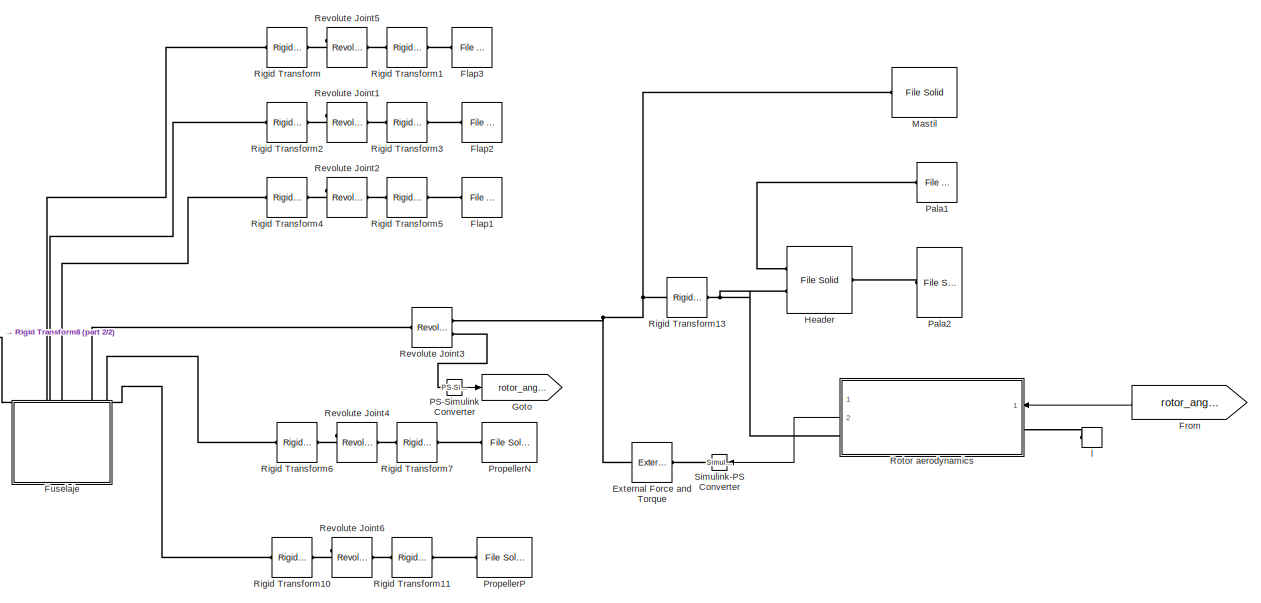
[diagram: root canvas - part 1/2, most of the canvas]
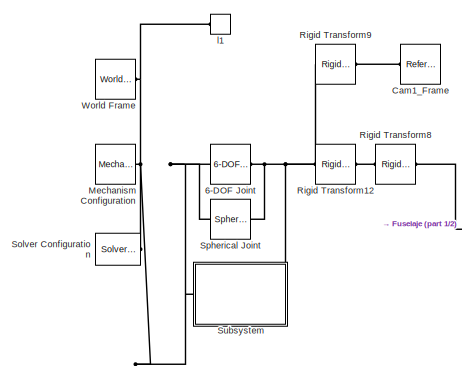
[diagram: root canvas - part 2/2, middle left region]
MODEL slx_e6487f48ca37
KIND model
CONFIG AbsTol = auto
CONFIG EnableMultiTasking = off
CONFIG FixedStep = 0.001
CONFIG MaxStep = auto
CONFIG MinStep = auto
CONFIG RelTol = 1e-3
CONFIG SampleTimeConstraint = Unconstrained
CONFIG SolverName = ode3
CONFIG StartTime = 0.0
CONFIG StopTime = 200
WORKSPACE source: mxarray member
WORKSPACE Area = 0.502654824574
WORKSPACE blade_radius = 0.4
WORKSPACE par_coefficient = [0 1 2 3 4 5 6 7 8 9 10 11 ... (42 elements, 21x2)]
WORKSPACE rho = 1.2
BLOCK [Reference] 6-DOF Joint  REF=sm_lib/Joints/6-DOF Joint
  Commented = on
  Ports = [0, 0, 0, 0, 0, 1, 1]
  SourceBlock = sm_lib/Joints/6-DOF Joint
  SourceProductBaseCode = MS
  SourceType = 6-DOF Joint
BLOCK [Reference] Cam1_Frame  REF=sm_lib/Frames and
Transforms/Reference
Frame
  NameLocation = top
  Ports = [0, 0, 0, 0, 0, 0, 1]
  SourceBlock = sm_lib/Frames and\nTransforms/Reference\nFrame
  SourceProductBaseCode = MS
  SourceType = Reference\nFrame
BLOCK [Reference] External Force and Torque  REF=sm_lib/Forces and
Torques/External Force
and Torque
  NameLocation = top
  Ports = [0, 0, 0, 0, 0, 1, 1]
  SourceBlock = sm_lib/Forces and\nTorques/External Force\nand Torque
  SourceProductBaseCode = MS
  SourceType = External Force\nand Torque
BLOCK [Reference] Flap1  REF=sm_lib/Body Elements/File Solid
  Ports = [0, 0, 0, 0, 0, 1]
  SourceBlock = sm_lib/Body Elements/File Solid
  SourceProductBaseCode = MS
  SourceType = File Solid
BLOCK [Reference] Flap2  REF=sm_lib/Body Elements/File Solid
  Ports = [0, 0, 0, 0, 0, 1]
  SourceBlock = sm_lib/Body Elements/File Solid
  SourceProductBaseCode = MS
  SourceType = File Solid
BLOCK [Reference] Flap3  REF=sm_lib/Body Elements/File Solid
  Ports = [0, 0, 0, 0, 0, 1]
  SourceBlock = sm_lib/Body Elements/File Solid
  SourceProductBaseCode = MS
  SourceType = File Solid
BLOCK [From] From
  GotoTag = rotor_ang_vel
  NameLocation = top
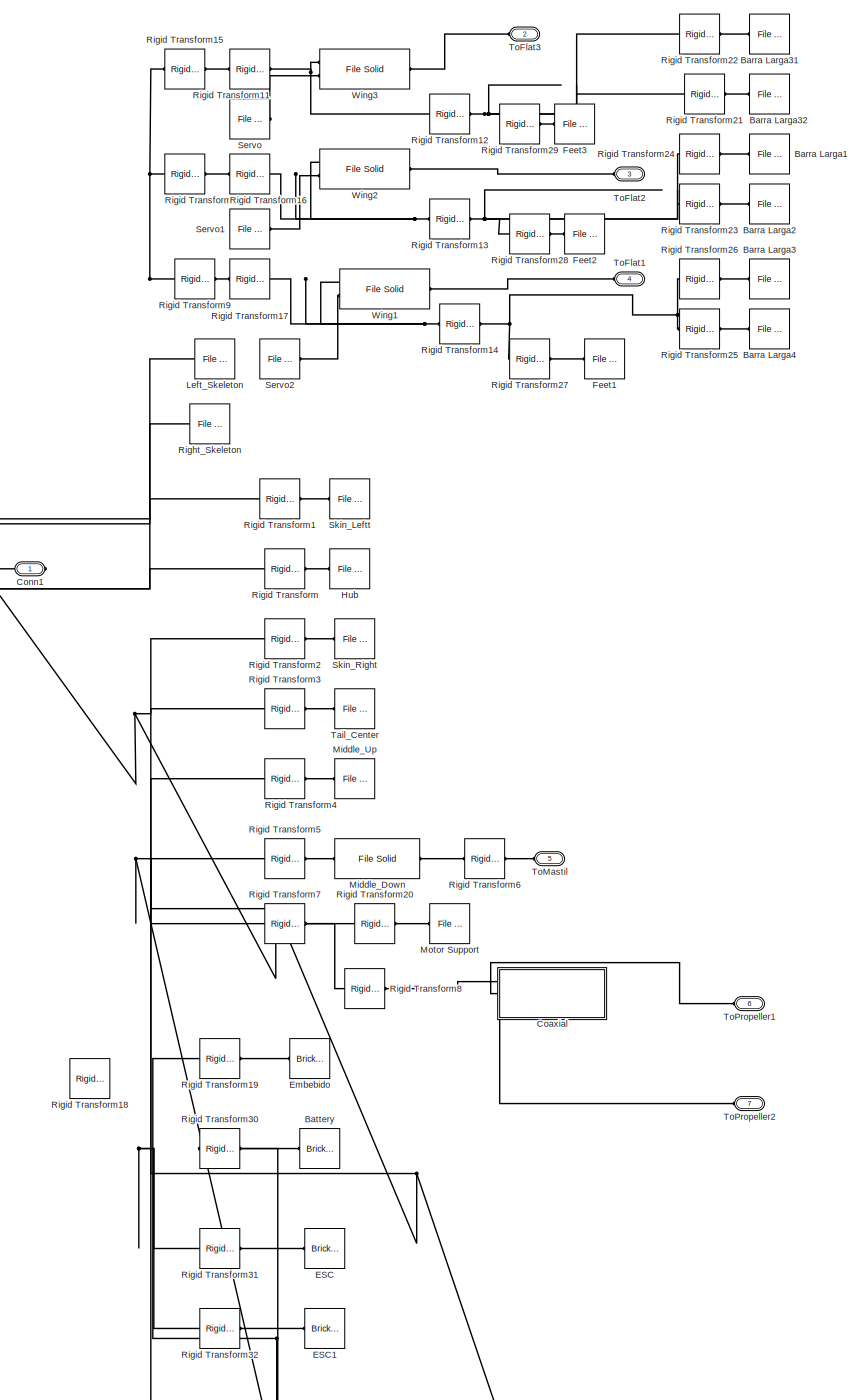
[diagram: Fuselaje - part 1/1, most of the canvas]
BLOCK [SubSystem] Fuselaje
  NameLocation = left
  Ports = [0, 0, 0, 0, 0, 7]
  RequestExecContextInheritance = off
BLOCK [Reference] Fuselaje/Barra Larga1  REF=sm_lib/Body Elements/File Solid
  Ports = [0, 0, 0, 0, 0, 1]
  SourceBlock = sm_lib/Body Elements/File Solid
  SourceProductBaseCode = MS
  SourceType = File Solid
BLOCK [Reference] Fuselaje/Barra Larga2  REF=sm_lib/Body Elements/File Solid
  Ports = [0, 0, 0, 0, 0, 1]
  SourceBlock = sm_lib/Body Elements/File Solid
  SourceProductBaseCode = MS
  SourceType = File Solid
BLOCK [Reference] Fuselaje/Barra Larga3  REF=sm_lib/Body Elements/File Solid
  Ports = [0, 0, 0, 0, 0, 1]
  SourceBlock = sm_lib/Body Elements/File Solid
  SourceProductBaseCode = MS
  SourceType = File Solid
BLOCK [Reference] Fuselaje/Barra Larga31  REF=sm_lib/Body Elements/File Solid
  Ports = [0, 0, 0, 0, 0, 1]
  SourceBlock = sm_lib/Body Elements/File Solid
  SourceProductBaseCode = MS
  SourceType = File Solid
BLOCK [Reference] Fuselaje/Barra Larga32  REF=sm_lib/Body Elements/File Solid
  Ports = [0, 0, 0, 0, 0, 1]
  SourceBlock = sm_lib/Body Elements/File Solid
  SourceProductBaseCode = MS
  SourceType = File Solid
BLOCK [Reference] Fuselaje/Barra Larga4  REF=sm_lib/Body Elements/File Solid
  Ports = [0, 0, 0, 0, 0, 1]
  SourceBlock = sm_lib/Body Elements/File Solid
  SourceProductBaseCode = MS
  SourceType = File Solid
BLOCK [Reference] Fuselaje/Battery  REF=sm_lib/Body Elements/Brick Solid
  NameLocation = top
  Ports = [0, 0, 0, 0, 0, 0, 1]
  SourceBlock = sm_lib/Body Elements/Brick Solid
  SourceProductBaseCode = MS
  SourceType = Brick Solid
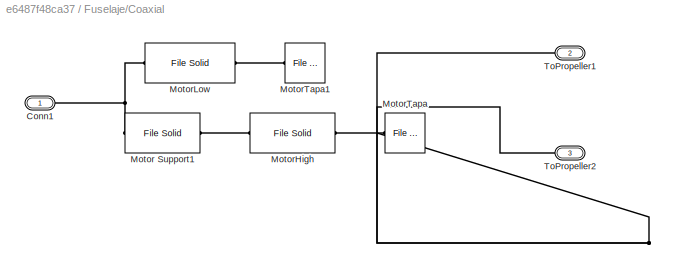
BLOCK [SubSystem] Fuselaje/Coaxial
  Ports = [0, 0, 0, 0, 0, 3]
  RequestExecContextInheritance = off
BLOCK [PMIOPort] Fuselaje/Coaxial/Conn1
  Side = Left
BLOCK [Reference] Fuselaje/Coaxial/Motor Support1  REF=sm_lib/Body Elements/File Solid
  Ports = [0, 0, 0, 0, 0, 1, 1]
  SourceBlock = sm_lib/Body Elements/File Solid
  SourceProductBaseCode = MS
  SourceType = File Solid
BLOCK [Reference] Fuselaje/Coaxial/MotorHigh  REF=sm_lib/Body Elements/File Solid
  Ports = [0, 0, 0, 0, 0, 1, 1]
  SourceBlock = sm_lib/Body Elements/File Solid
  SourceProductBaseCode = MS
  SourceType = File Solid
BLOCK [Reference] Fuselaje/Coaxial/MotorLow  REF=sm_lib/Body Elements/File Solid
  Ports = [0, 0, 0, 0, 0, 1, 1]
  SourceBlock = sm_lib/Body Elements/File Solid
  SourceProductBaseCode = MS
  SourceType = File Solid
BLOCK [Reference] Fuselaje/Coaxial/MotorTapa  REF=sm_lib/Body Elements/File Solid
  Ports = [0, 0, 0, 0, 0, 1]
  SourceBlock = sm_lib/Body Elements/File Solid
  SourceProductBaseCode = MS
  SourceType = File Solid
BLOCK [Reference] Fuselaje/Coaxial/MotorTapa1  REF=sm_lib/Body Elements/File Solid
  Ports = [0, 0, 0, 0, 0, 1]
  SourceBlock = sm_lib/Body Elements/File Solid
  SourceProductBaseCode = MS
  SourceType = File Solid
BLOCK [PMIOPort] Fuselaje/Coaxial/ToPropeller1
  NameLocation = top
  Port = 2
  Side = Left
BLOCK [PMIOPort] Fuselaje/Coaxial/ToPropeller2
  NameLocation = top
  Port = 3
  Side = Left
BLOCK [PMIOPort] Fuselaje/Conn1
  Side = Left
BLOCK [Reference] Fuselaje/ESC  REF=sm_lib/Body Elements/Brick Solid
  NameLocation = top
  Ports = [0, 0, 0, 0, 0, 0, 1]
  SourceBlock = sm_lib/Body Elements/Brick Solid
  SourceProductBaseCode = MS
  SourceType = Brick Solid
BLOCK [Reference] Fuselaje/ESC1  REF=sm_lib/Body Elements/Brick Solid
  NameLocation = top
  Ports = [0, 0, 0, 0, 0, 0, 1]
  SourceBlock = sm_lib/Body Elements/Brick Solid
  SourceProductBaseCode = MS
  SourceType = Brick Solid
BLOCK [Reference] Fuselaje/Embebido  REF=sm_lib/Body Elements/Brick Solid
  NameLocation = top
  Ports = [0, 0, 0, 0, 0, 0, 1]
  SourceBlock = sm_lib/Body Elements/Brick Solid
  SourceProductBaseCode = MS
  SourceType = Brick Solid
BLOCK [Reference] Fuselaje/Feet1  REF=sm_lib/Body Elements/File Solid
  Ports = [0, 0, 0, 0, 0, 1]
  SourceBlock = sm_lib/Body Elements/File Solid
  SourceProductBaseCode = MS
  SourceType = File Solid
BLOCK [Reference] Fuselaje/Feet2  REF=sm_lib/Body Elements/File Solid
  Ports = [0, 0, 0, 0, 0, 1]
  SourceBlock = sm_lib/Body Elements/File Solid
  SourceProductBaseCode = MS
  SourceType = File Solid
BLOCK [Reference] Fuselaje/Feet3  REF=sm_lib/Body Elements/File Solid
  Ports = [0, 0, 0, 0, 0, 1]
  SourceBlock = sm_lib/Body Elements/File Solid
  SourceProductBaseCode = MS
  SourceType = File Solid
BLOCK [Reference] Fuselaje/Hub  REF=sm_lib/Body Elements/File Solid
  Ports = [0, 0, 0, 0, 0, 1]
  SourceBlock = sm_lib/Body Elements/File Solid
  SourceProductBaseCode = MS
  SourceType = File Solid
BLOCK [Reference] Fuselaje/Left_Skeleton  REF=sm_lib/Body Elements/File Solid
  Ports = [0, 0, 0, 0, 0, 1]
  SourceBlock = sm_lib/Body Elements/File Solid
  SourceProductBaseCode = MS
  SourceType = File Solid
BLOCK [Reference] Fuselaje/Middle_Down  REF=sm_lib/Body Elements/File Solid
  Ports = [0, 0, 0, 0, 0, 1, 1]
  SourceBlock = sm_lib/Body Elements/File Solid
  SourceProductBaseCode = MS
  SourceType = File Solid
BLOCK [Reference] Fuselaje/Middle_Up  REF=sm_lib/Body Elements/File Solid
  Ports = [0, 0, 0, 0, 0, 1]
  SourceBlock = sm_lib/Body Elements/File Solid
  SourceProductBaseCode = MS
  SourceType = File Solid
BLOCK [Reference] Fuselaje/Motor Support  REF=sm_lib/Body Elements/File Solid
  Commented = on
  Ports = [0, 0, 0, 0, 0, 1]
  SourceBlock = sm_lib/Body Elements/File Solid
  SourceProductBaseCode = MS
  SourceType = File Solid
BLOCK [Reference] Fuselaje/Right_Skeleton  REF=sm_lib/Body Elements/File Solid
  Ports = [0, 0, 0, 0, 0, 1]
  SourceBlock = sm_lib/Body Elements/File Solid
  SourceProductBaseCode = MS
  SourceType = File Solid
BLOCK [Reference] Fuselaje/Rigid Transform  REF=sm_lib/Frames and
Transforms/Rigid
Transform
  Ports = [0, 0, 0, 0, 0, 1, 1]
  SourceBlock = sm_lib/Frames and\nTransforms/Rigid\nTransform
  SourceProductBaseCode = MS
  SourceType = Rigid\nTransform
BLOCK [Reference] Fuselaje/Rigid Transform1  REF=sm_lib/Frames and
Transforms/Rigid
Transform
  Ports = [0, 0, 0, 0, 0, 1, 1]
  SourceBlock = sm_lib/Frames and\nTransforms/Rigid\nTransform
  SourceProductBaseCode = MS
  SourceType = Rigid\nTransform
BLOCK [Reference] Fuselaje/Rigid Transform10  REF=sm_lib/Frames and
Transforms/Rigid
Transform
  Ports = [0, 0, 0, 0, 0, 1, 1]
  SourceBlock = sm_lib/Frames and\nTransforms/Rigid\nTransform
  SourceProductBaseCode = MS
  SourceType = Rigid\nTransform
BLOCK [Reference] Fuselaje/Rigid Transform11  REF=sm_lib/Frames and
Transforms/Rigid
Transform
  Ports = [0, 0, 0, 0, 0, 1, 1]
  SourceBlock = sm_lib/Frames and\nTransforms/Rigid\nTransform
  SourceProductBaseCode = MS
  SourceType = Rigid\nTransform
BLOCK [Reference] Fuselaje/Rigid Transform12  REF=sm_lib/Frames and
Transforms/Rigid
Transform
  Ports = [0, 0, 0, 0, 0, 1, 1]
  SourceBlock = sm_lib/Frames and\nTransforms/Rigid\nTransform
  SourceProductBaseCode = MS
  SourceType = Rigid\nTransform
BLOCK [Reference] Fuselaje/Rigid Transform13  REF=sm_lib/Frames and
Transforms/Rigid
Transform
  Ports = [0, 0, 0, 0, 0, 1, 1]
  SourceBlock = sm_lib/Frames and\nTransforms/Rigid\nTransform
  SourceProductBaseCode = MS
  SourceType = Rigid\nTransform
BLOCK [Reference] Fuselaje/Rigid Transform14  REF=sm_lib/Frames and
Transforms/Rigid
Transform
  Ports = [0, 0, 0, 0, 0, 1, 1]
  SourceBlock = sm_lib/Frames and\nTransforms/Rigid\nTransform
  SourceProductBaseCode = MS
  SourceType = Rigid\nTransform
BLOCK [Reference] Fuselaje/Rigid Transform15  REF=sm_lib/Frames and
Transforms/Rigid
Transform
  Ports = [0, 0, 0, 0, 0, 1, 1]
  SourceBlock = sm_lib/Frames and\nTransforms/Rigid\nTransform
  SourceProductBaseCode = MS
  SourceType = Rigid\nTransform
BLOCK [Reference] Fuselaje/Rigid Transform16  REF=sm_lib/Frames and
Transforms/Rigid
Transform
  Ports = [0, 0, 0, 0, 0, 1, 1]
  SourceBlock = sm_lib/Frames and\nTransforms/Rigid\nTransform
  SourceProductBaseCode = MS
  SourceType = Rigid\nTransform
BLOCK [Reference] Fuselaje/Rigid Transform17  REF=sm_lib/Frames and
Transforms/Rigid
Transform
  Ports = [0, 0, 0, 0, 0, 1, 1]
  SourceBlock = sm_lib/Frames and\nTransforms/Rigid\nTransform
  SourceProductBaseCode = MS
  SourceType = Rigid\nTransform
BLOCK [Reference] Fuselaje/Rigid Transform18  REF=sm_lib/Frames and
Transforms/Rigid
Transform
  Commented = on
  Ports = [0, 0, 0, 0, 0, 1, 1]
  SourceBlock = sm_lib/Frames and\nTransforms/Rigid\nTransform
  SourceProductBaseCode = MS
  SourceType = Rigid\nTransform
BLOCK [Reference] Fuselaje/Rigid Transform19  REF=sm_lib/Frames and
Transforms/Rigid
Transform
  Ports = [0, 0, 0, 0, 0, 1, 1]
  SourceBlock = sm_lib/Frames and\nTransforms/Rigid\nTransform
  SourceProductBaseCode = MS
  SourceType = Rigid\nTransform
BLOCK [Reference] Fuselaje/Rigid Transform2  REF=sm_lib/Frames and
Transforms/Rigid
Transform
  Ports = [0, 0, 0, 0, 0, 1, 1]
  SourceBlock = sm_lib/Frames and\nTransforms/Rigid\nTransform
  SourceProductBaseCode = MS
  SourceType = Rigid\nTransform
BLOCK [Reference] Fuselaje/Rigid Transform20  REF=sm_lib/Frames and
Transforms/Rigid
Transform
  Commented = on
  Ports = [0, 0, 0, 0, 0, 1, 1]
  SourceBlock = sm_lib/Frames and\nTransforms/Rigid\nTransform
  SourceProductBaseCode = MS
  SourceType = Rigid\nTransform
BLOCK [Reference] Fuselaje/Rigid Transform21  REF=sm_lib/Frames and
Transforms/Rigid
Transform
  Ports = [0, 0, 0, 0, 0, 1, 1]
  SourceBlock = sm_lib/Frames and\nTransforms/Rigid\nTransform
  SourceProductBaseCode = MS
  SourceType = Rigid\nTransform
BLOCK [Reference] Fuselaje/Rigid Transform22  REF=sm_lib/Frames and
Transforms/Rigid
Transform
  Ports = [0, 0, 0, 0, 0, 1, 1]
  SourceBlock = sm_lib/Frames and\nTransforms/Rigid\nTransform
  SourceProductBaseCode = MS
  SourceType = Rigid\nTransform
BLOCK [Reference] Fuselaje/Rigid Transform23  REF=sm_lib/Frames and
Transforms/Rigid
Transform
  Ports = [0, 0, 0, 0, 0, 1, 1]
  SourceBlock = sm_lib/Frames and\nTransforms/Rigid\nTransform
  SourceProductBaseCode = MS
  SourceType = Rigid\nTransform
BLOCK [Reference] Fuselaje/Rigid Transform24  REF=sm_lib/Frames and
Transforms/Rigid
Transform
  Ports = [0, 0, 0, 0, 0, 1, 1]
  SourceBlock = sm_lib/Frames and\nTransforms/Rigid\nTransform
  SourceProductBaseCode = MS
  SourceType = Rigid\nTransform
BLOCK [Reference] Fuselaje/Rigid Transform25  REF=sm_lib/Frames and
Transforms/Rigid
Transform
  Ports = [0, 0, 0, 0, 0, 1, 1]
  SourceBlock = sm_lib/Frames and\nTransforms/Rigid\nTransform
  SourceProductBaseCode = MS
  SourceType = Rigid\nTransform
BLOCK [Reference] Fuselaje/Rigid Transform26  REF=sm_lib/Frames and
Transforms/Rigid
Transform
  Ports = [0, 0, 0, 0, 0, 1, 1]
  SourceBlock = sm_lib/Frames and\nTransforms/Rigid\nTransform
  SourceProductBaseCode = MS
  SourceType = Rigid\nTransform
BLOCK [Reference] Fuselaje/Rigid Transform27  REF=sm_lib/Frames and
Transforms/Rigid
Transform
  Ports = [0, 0, 0, 0, 0, 1, 1]
  SourceBlock = sm_lib/Frames and\nTransforms/Rigid\nTransform
  SourceProductBaseCode = MS
  SourceType = Rigid\nTransform
BLOCK [Reference] Fuselaje/Rigid Transform28  REF=sm_lib/Frames and
Transforms/Rigid
Transform
  Ports = [0, 0, 0, 0, 0, 1, 1]
  SourceBlock = sm_lib/Frames and\nTransforms/Rigid\nTransform
  SourceProductBaseCode = MS
  SourceType = Rigid\nTransform
BLOCK [Reference] Fuselaje/Rigid Transform29  REF=sm_lib/Frames and
Transforms/Rigid
Transform
  Ports = [0, 0, 0, 0, 0, 1, 1]
  SourceBlock = sm_lib/Frames and\nTransforms/Rigid\nTransform
  SourceProductBaseCode = MS
  SourceType = Rigid\nTransform
BLOCK [Reference] Fuselaje/Rigid Transform3  REF=sm_lib/Frames and
Transforms/Rigid
Transform
  Ports = [0, 0, 0, 0, 0, 1, 1]
  SourceBlock = sm_lib/Frames and\nTransforms/Rigid\nTransform
  SourceProductBaseCode = MS
  SourceType = Rigid\nTransform
BLOCK [Reference] Fuselaje/Rigid Transform30  REF=sm_lib/Frames and
Transforms/Rigid
Transform
  Ports = [0, 0, 0, 0, 0, 1, 1]
  SourceBlock = sm_lib/Frames and\nTransforms/Rigid\nTransform
  SourceProductBaseCode = MS
  SourceType = Rigid\nTransform
BLOCK [Reference] Fuselaje/Rigid Transform31  REF=sm_lib/Frames and
Transforms/Rigid
Transform
  Ports = [0, 0, 0, 0, 0, 1, 1]
  SourceBlock = sm_lib/Frames and\nTransforms/Rigid\nTransform
  SourceProductBaseCode = MS
  SourceType = Rigid\nTransform
BLOCK [Reference] Fuselaje/Rigid Transform32  REF=sm_lib/Frames and
Transforms/Rigid
Transform
  Ports = [0, 0, 0, 0, 0, 1, 1]
  SourceBlock = sm_lib/Frames and\nTransforms/Rigid\nTransform
  SourceProductBaseCode = MS
  SourceType = Rigid\nTransform
BLOCK [Reference] Fuselaje/Rigid Transform4  REF=sm_lib/Frames and
Transforms/Rigid
Transform
  Ports = [0, 0, 0, 0, 0, 1, 1]
  SourceBlock = sm_lib/Frames and\nTransforms/Rigid\nTransform
  SourceProductBaseCode = MS
  SourceType = Rigid\nTransform
BLOCK [Reference] Fuselaje/Rigid Transform5  REF=sm_lib/Frames and
Transforms/Rigid
Transform
  Ports = [0, 0, 0, 0, 0, 1, 1]
  SourceBlock = sm_lib/Frames and\nTransforms/Rigid\nTransform
  SourceProductBaseCode = MS
  SourceType = Rigid\nTransform
BLOCK [Reference] Fuselaje/Rigid Transform6  REF=sm_lib/Frames and
Transforms/Rigid
Transform
  Ports = [0, 0, 0, 0, 0, 1, 1]
  SourceBlock = sm_lib/Frames and\nTransforms/Rigid\nTransform
  SourceProductBaseCode = MS
  SourceType = Rigid\nTransform
BLOCK [Reference] Fuselaje/Rigid Transform7  REF=sm_lib/Frames and
Transforms/Rigid
Transform
  Ports = [0, 0, 0, 0, 0, 1, 1]
  SourceBlock = sm_lib/Frames and\nTransforms/Rigid\nTransform
  SourceProductBaseCode = MS
  SourceType = Rigid\nTransform
BLOCK [Reference] Fuselaje/Rigid Transform8  REF=sm_lib/Frames and
Transforms/Rigid
Transform
  Ports = [0, 0, 0, 0, 0, 1, 1]
  SourceBlock = sm_lib/Frames and\nTransforms/Rigid\nTransform
  SourceProductBaseCode = MS
  SourceType = Rigid\nTransform
BLOCK [Reference] Fuselaje/Rigid Transform9  REF=sm_lib/Frames and
Transforms/Rigid
Transform
  Ports = [0, 0, 0, 0, 0, 1, 1]
  SourceBlock = sm_lib/Frames and\nTransforms/Rigid\nTransform
  SourceProductBaseCode = MS
  SourceType = Rigid\nTransform
BLOCK [Reference] Fuselaje/Servo  REF=sm_lib/Body Elements/File Solid
  NameLocation = top
  Ports = [0, 0, 0, 0, 0, 1]
  SourceBlock = sm_lib/Body Elements/File Solid
  SourceProductBaseCode = MS
  SourceType = File Solid
BLOCK [Reference] Fuselaje/Servo1  REF=sm_lib/Body Elements/File Solid
  NameLocation = top
  Ports = [0, 0, 0, 0, 0, 1]
  SourceBlock = sm_lib/Body Elements/File Solid
  SourceProductBaseCode = MS
  SourceType = File Solid
BLOCK [Reference] Fuselaje/Servo2  REF=sm_lib/Body Elements/File Solid
  NameLocation = top
  Ports = [0, 0, 0, 0, 0, 1]
  SourceBlock = sm_lib/Body Elements/File Solid
  SourceProductBaseCode = MS
  SourceType = File Solid
BLOCK [Reference] Fuselaje/Skin_Leftt  REF=sm_lib/Body Elements/File Solid
  Ports = [0, 0, 0, 0, 0, 1]
  SourceBlock = sm_lib/Body Elements/File Solid
  SourceProductBaseCode = MS
  SourceType = File Solid
BLOCK [Reference] Fuselaje/Skin_Right  REF=sm_lib/Body Elements/File Solid
  Ports = [0, 0, 0, 0, 0, 1]
  SourceBlock = sm_lib/Body Elements/File Solid
  SourceProductBaseCode = MS
  SourceType = File Solid
BLOCK [Reference] Fuselaje/Tail_Center  REF=sm_lib/Body Elements/File Solid
  Ports = [0, 0, 0, 0, 0, 1]
  SourceBlock = sm_lib/Body Elements/File Solid
  SourceProductBaseCode = MS
  SourceType = File Solid
BLOCK [PMIOPort] Fuselaje/ToFlat1
  NameLocation = top
  Port = 4
  Side = Left
BLOCK [PMIOPort] Fuselaje/ToFlat2
  NameLocation = top
  Port = 3
  Side = Left
BLOCK [PMIOPort] Fuselaje/ToFlat3
  NameLocation = top
  Port = 2
  Side = Left
BLOCK [PMIOPort] Fuselaje/ToMastil
  NameLocation = top
  Port = 5
  Side = Left
BLOCK [PMIOPort] Fuselaje/ToPropeller1
  NameLocation = top
  Port = 6
  Side = Left
BLOCK [PMIOPort] Fuselaje/ToPropeller2
  NameLocation = top
  Port = 7
  Side = Left
BLOCK [Reference] Fuselaje/Wing1  REF=sm_lib/Body Elements/File Solid
  Ports = [0, 0, 0, 0, 0, 2, 1]
  SourceBlock = sm_lib/Body Elements/File Solid
  SourceProductBaseCode = MS
  SourceType = File Solid
BLOCK [Reference] Fuselaje/Wing2  REF=sm_lib/Body Elements/File Solid
  Ports = [0, 0, 0, 0, 0, 2, 1]
  SourceBlock = sm_lib/Body Elements/File Solid
  SourceProductBaseCode = MS
  SourceType = File Solid
BLOCK [Reference] Fuselaje/Wing3  REF=sm_lib/Body Elements/File Solid
  Ports = [0, 0, 0, 0, 0, 2, 1]
  SourceBlock = sm_lib/Body Elements/File Solid
  SourceProductBaseCode = MS
  SourceType = File Solid
BLOCK [Goto] Goto
  GotoTag = rotor_ang_vel
BLOCK [Reference] Header  REF=sm_lib/Body Elements/File Solid
  Ports = [0, 0, 0, 0, 0, 2, 1]
  SourceBlock = sm_lib/Body Elements/File Solid
  SourceProductBaseCode = MS
  SourceType = File Solid
BLOCK [Reference] Mastil  REF=sm_lib/Body Elements/File Solid
  Ports = [0, 0, 0, 0, 0, 1, 1]
  SourceBlock = sm_lib/Body Elements/File Solid
  SourceProductBaseCode = MS
  SourceType = File Solid
BLOCK [Reference] Mechanism Configuration  REF=sm_lib/Utilities/Mechanism
Configuration
  Ports = [0, 0, 0, 0, 0, 0, 1]
  SourceBlock = sm_lib/Utilities/Mechanism\nConfiguration
  SourceProductBaseCode = MS
  SourceType = Mechanism\nConfiguration
BLOCK [Reference] PS-Simulink Converter  REF=nesl_utility/PS-Simulink
Converter
  Ports = [0, 1, 0, 0, 0, 1]
  SourceBlock = nesl_utility/PS-Simulink\nConverter
  SourceProductBaseCode = PW,SS
  SourceType = PS-Simulink\nConverter
BLOCK [Reference] Pala1  REF=sm_lib/Body Elements/File Solid
  Ports = [0, 0, 0, 0, 0, 1]
  SourceBlock = sm_lib/Body Elements/File Solid
  SourceProductBaseCode = MS
  SourceType = File Solid
BLOCK [Reference] Pala2  REF=sm_lib/Body Elements/File Solid
  Ports = [0, 0, 0, 0, 0, 1]
  SourceBlock = sm_lib/Body Elements/File Solid
  SourceProductBaseCode = MS
  SourceType = File Solid
BLOCK [Reference] PropellerN  REF=sm_lib/Body Elements/File Solid
  Ports = [0, 0, 0, 0, 0, 1, 1]
  SourceBlock = sm_lib/Body Elements/File Solid
  SourceProductBaseCode = MS
  SourceType = File Solid
BLOCK [Reference] PropellerP  REF=sm_lib/Body Elements/File Solid
  Ports = [0, 0, 0, 0, 0, 1, 1]
  SourceBlock = sm_lib/Body Elements/File Solid
  SourceProductBaseCode = MS
  SourceType = File Solid
BLOCK [Reference] Revolute Joint1  REF=sm_lib/Joints/Revolute Joint
  Ports = [0, 0, 0, 0, 0, 2, 1]
  SourceBlock = sm_lib/Joints/Revolute Joint
  SourceProductBaseCode = MS
  SourceType = Revolute Joint
BLOCK [Reference] Revolute Joint2  REF=sm_lib/Joints/Revolute Joint
  Ports = [0, 0, 0, 0, 0, 2, 1]
  SourceBlock = sm_lib/Joints/Revolute Joint
  SourceProductBaseCode = MS
  SourceType = Revolute Joint
BLOCK [Reference] Revolute Joint3  REF=sm_lib/Joints/Revolute Joint
  Ports = [0, 0, 0, 0, 0, 1, 2]
  SourceBlock = sm_lib/Joints/Revolute Joint
  SourceProductBaseCode = MS
  SourceType = Revolute Joint
BLOCK [Reference] Revolute Joint4  REF=sm_lib/Joints/Revolute Joint
  Ports = [0, 0, 0, 0, 0, 2, 1]
  SourceBlock = sm_lib/Joints/Revolute Joint
  SourceProductBaseCode = MS
  SourceType = Revolute Joint
BLOCK [Reference] Revolute Joint5  REF=sm_lib/Joints/Revolute Joint
  Ports = [0, 0, 0, 0, 0, 2, 1]
  SourceBlock = sm_lib/Joints/Revolute Joint
  SourceProductBaseCode = MS
  SourceType = Revolute Joint
BLOCK [Reference] Revolute Joint6  REF=sm_lib/Joints/Revolute Joint
  Ports = [0, 0, 0, 0, 0, 2, 1]
  SourceBlock = sm_lib/Joints/Revolute Joint
  SourceProductBaseCode = MS
  SourceType = Revolute Joint
BLOCK [Reference] Rigid Transform  REF=sm_lib/Frames and
Transforms/Rigid
Transform
  Ports = [0, 0, 0, 0, 0, 1, 1]
  SourceBlock = sm_lib/Frames and\nTransforms/Rigid\nTransform
  SourceProductBaseCode = MS
  SourceType = Rigid\nTransform
BLOCK [Reference] Rigid Transform1  REF=sm_lib/Frames and
Transforms/Rigid
Transform
  Ports = [0, 0, 0, 0, 0, 1, 1]
  SourceBlock = sm_lib/Frames and\nTransforms/Rigid\nTransform
  SourceProductBaseCode = MS
  SourceType = Rigid\nTransform
BLOCK [Reference] Rigid Transform10  REF=sm_lib/Frames and
Transforms/Rigid
Transform
  Ports = [0, 0, 0, 0, 0, 1, 1]
  SourceBlock = sm_lib/Frames and\nTransforms/Rigid\nTransform
  SourceProductBaseCode = MS
  SourceType = Rigid\nTransform
BLOCK [Reference] Rigid Transform11  REF=sm_lib/Frames and
Transforms/Rigid
Transform
  Ports = [0, 0, 0, 0, 0, 1, 1]
  SourceBlock = sm_lib/Frames and\nTransforms/Rigid\nTransform
  SourceProductBaseCode = MS
  SourceType = Rigid\nTransform
BLOCK [Reference] Rigid Transform12  REF=sm_lib/Frames and
Transforms/Rigid
Transform
  Ports = [0, 0, 0, 0, 0, 1, 1]
  SourceBlock = sm_lib/Frames and\nTransforms/Rigid\nTransform
  SourceProductBaseCode = MS
  SourceType = Rigid\nTransform
BLOCK [Reference] Rigid Transform13  REF=sm_lib/Frames and
Transforms/Rigid
Transform
  Ports = [0, 0, 0, 0, 0, 1, 1]
  SourceBlock = sm_lib/Frames and\nTransforms/Rigid\nTransform
  SourceProductBaseCode = MS
  SourceType = Rigid\nTransform
BLOCK [Reference] Rigid Transform2  REF=sm_lib/Frames and
Transforms/Rigid
Transform
  Ports = [0, 0, 0, 0, 0, 1, 1]
  SourceBlock = sm_lib/Frames and\nTransforms/Rigid\nTransform
  SourceProductBaseCode = MS
  SourceType = Rigid\nTransform
BLOCK [Reference] Rigid Transform3  REF=sm_lib/Frames and
Transforms/Rigid
Transform
  Ports = [0, 0, 0, 0, 0, 1, 1]
  SourceBlock = sm_lib/Frames and\nTransforms/Rigid\nTransform
  SourceProductBaseCode = MS
  SourceType = Rigid\nTransform
BLOCK [Reference] Rigid Transform4  REF=sm_lib/Frames and
Transforms/Rigid
Transform
  Ports = [0, 0, 0, 0, 0, 1, 1]
  SourceBlock = sm_lib/Frames and\nTransforms/Rigid\nTransform
  SourceProductBaseCode = MS
  SourceType = Rigid\nTransform
BLOCK [Reference] Rigid Transform5  REF=sm_lib/Frames and
Transforms/Rigid
Transform
  Ports = [0, 0, 0, 0, 0, 1, 1]
  SourceBlock = sm_lib/Frames and\nTransforms/Rigid\nTransform
  SourceProductBaseCode = MS
  SourceType = Rigid\nTransform
BLOCK [Reference] Rigid Transform6  REF=sm_lib/Frames and
Transforms/Rigid
Transform
  Ports = [0, 0, 0, 0, 0, 1, 1]
  SourceBlock = sm_lib/Frames and\nTransforms/Rigid\nTransform
  SourceProductBaseCode = MS
  SourceType = Rigid\nTransform
BLOCK [Reference] Rigid Transform7  REF=sm_lib/Frames and
Transforms/Rigid
Transform
  Ports = [0, 0, 0, 0, 0, 1, 1]
  SourceBlock = sm_lib/Frames and\nTransforms/Rigid\nTransform
  SourceProductBaseCode = MS
  SourceType = Rigid\nTransform
BLOCK [Reference] Rigid Transform8  REF=sm_lib/Frames and
Transforms/Rigid
Transform
  Ports = [0, 0, 0, 0, 0, 1, 1]
  SourceBlock = sm_lib/Frames and\nTransforms/Rigid\nTransform
  SourceProductBaseCode = MS
  SourceType = Rigid\nTransform
BLOCK [Reference] Rigid Transform9  REF=sm_lib/Frames and
Transforms/Rigid
Transform
  Ports = [0, 0, 0, 0, 0, 1, 1]
  SourceBlock = sm_lib/Frames and\nTransforms/Rigid\nTransform
  SourceProductBaseCode = MS
  SourceType = Rigid\nTransform
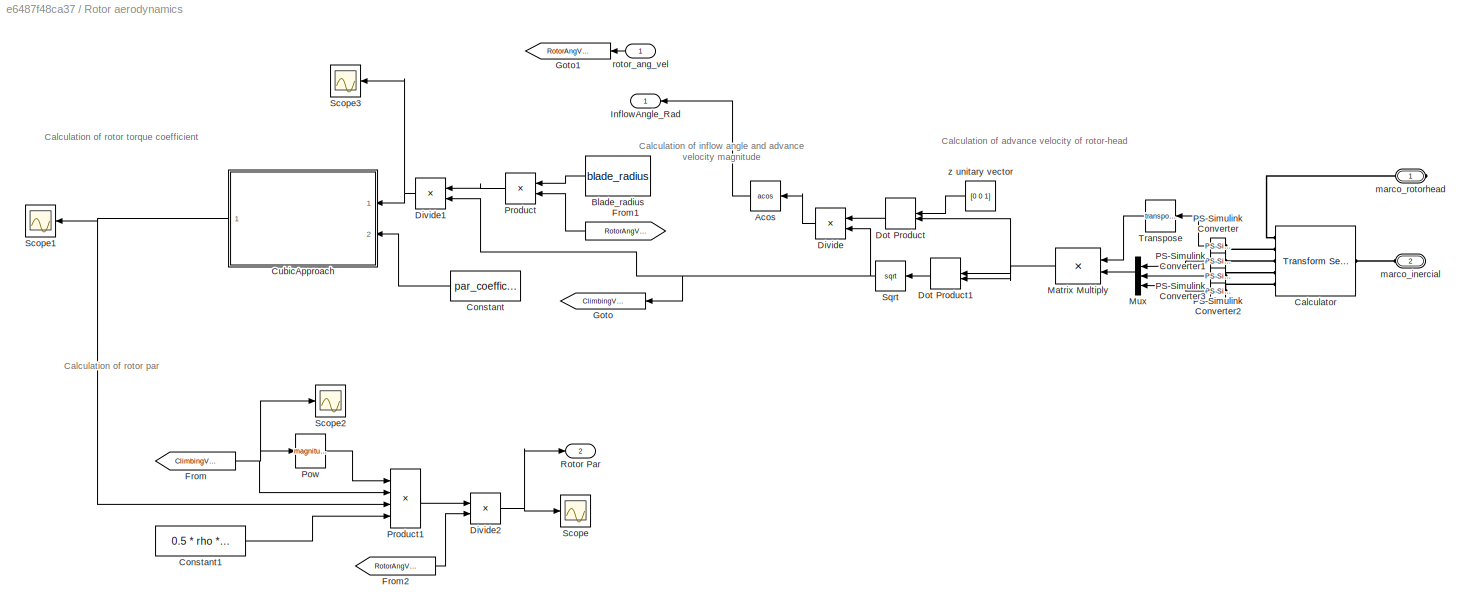
BLOCK [SubSystem] Rotor aerodynamics
  NameLocation = top
  Ports = [1, 2, 0, 0, 0, 1, 1]
  RequestExecContextInheritance = off
BLOCK [Trigonometry] Rotor aerodynamics/Acos
  NameLocation = top
  Operator = acos
  Ports = [1, 1]
BLOCK [Constant] Rotor aerodynamics/Blade_radius
  NameLocation = top
  Value = blade_radius
BLOCK [Reference] Rotor aerodynamics/Calculator  REF=sm_lib/Frames and
Transforms/Transform
Sensor
  NameLocation = top
  Ports = [0, 0, 0, 0, 0, 1, 5]
  SourceBlock = sm_lib/Frames and\nTransforms/Transform\nSensor
  SourceProductBaseCode = MS
  SourceType = Transform\nSensor
BLOCK [Constant] Rotor aerodynamics/Constant
  NameLocation = top
  Value = par_coefficient
  VectorParams1D = off
BLOCK [Constant] Rotor aerodynamics/Constant1
  Value = 0.5 * rho * Area
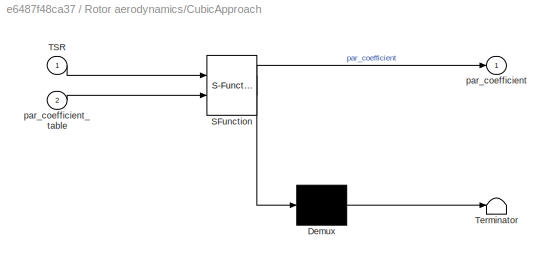
BLOCK [SubSystem] Rotor aerodynamics/CubicApproach
  ErrorFcn = Stateflow.Translate.translate
  NameLocation = top
  PermitHierarchicalResolution = ExplicitOnly
  Ports = [2, 1]
  RequestExecContextInheritance = off
  SFBlockType = MATLAB Function
  TreatAsAtomicUnit = on
BLOCK [Demux] Rotor aerodynamics/CubicApproach/ Demux 
  Outputs = 1
  Ports = [1, 1]
BLOCK [S-Function] Rotor aerodynamics/CubicApproach/ SFunction 
  EnableBusSupport = on
  FunctionName = sf_sfun
  PortCounts = [2 2]
  Ports = [2, 2]
  SFcnIsStateOwnerBlock = off
  SFunctionDeploymentMode = off
  Tag = Stateflow S-Function 2
BLOCK [Terminator] Rotor aerodynamics/CubicApproach/ Terminator 
BLOCK [Inport] Rotor aerodynamics/CubicApproach/TSR
BLOCK [Outport] Rotor aerodynamics/CubicApproach/par_coefficient
BLOCK [Inport] Rotor aerodynamics/CubicApproach/par_coefficient_table
  Port = 2
BLOCK [Product] Rotor aerodynamics/Divide
  Inputs = */
  NameLocation = top
  Ports = [2, 1]
BLOCK [Product] Rotor aerodynamics/Divide1
  Inputs = */
  NameLocation = top
  Ports = [2, 1]
BLOCK [Product] Rotor aerodynamics/Divide2
  Inputs = */
  Ports = [2, 1]
BLOCK [DotProduct] Rotor aerodynamics/Dot Product
  NameLocation = top
  OutDataTypeStr = Inherit: Inherit via internal rule
BLOCK [DotProduct] Rotor aerodynamics/Dot Product1
  NameLocation = top
  OutDataTypeStr = Inherit: Inherit via internal rule
BLOCK [From] Rotor aerodynamics/From
  GotoTag = ClimbingVel
BLOCK [From] Rotor aerodynamics/From1
  GotoTag = RotorAngVel
  NameLocation = top
BLOCK [From] Rotor aerodynamics/From2
  GotoTag = RotorAngVel
BLOCK [Goto] Rotor aerodynamics/Goto
  GotoTag = ClimbingVel
  NameLocation = top
BLOCK [Goto] Rotor aerodynamics/Goto1
  GotoTag = RotorAngVel
  NameLocation = top
BLOCK [Outport] Rotor aerodynamics/InflowAngle_Rad
  NameLocation = top
BLOCK [Product] Rotor aerodynamics/Matrix Multiply
  Multiplication = Matrix(*)
  NameLocation = top
  Ports = [2, 1]
BLOCK [Mux] Rotor aerodynamics/Mux
  DisplayOption = bar
  Inputs = 3
  NameLocation = top
  Ports = [3, 1]
BLOCK [Reference] Rotor aerodynamics/PS-Simulink Converter  REF=nesl_utility/PS-Simulink
Converter
  NameLocation = top
  Ports = [0, 1, 0, 0, 0, 1]
  SourceBlock = nesl_utility/PS-Simulink\nConverter
  SourceProductBaseCode = PW,SS
  SourceType = PS-Simulink\nConverter
BLOCK [Reference] Rotor aerodynamics/PS-Simulink Converter1  REF=nesl_utility/PS-Simulink
Converter
  NameLocation = top
  Ports = [0, 1, 0, 0, 0, 1]
  SourceBlock = nesl_utility/PS-Simulink\nConverter
  SourceProductBaseCode = PW,SS
  SourceType = PS-Simulink\nConverter
BLOCK [Reference] Rotor aerodynamics/PS-Simulink Converter2  REF=nesl_utility/PS-Simulink
Converter
  NameLocation = top
  Ports = [0, 1, 0, 0, 0, 1]
  SourceBlock = nesl_utility/PS-Simulink\nConverter
  SourceProductBaseCode = PW,SS
  SourceType = PS-Simulink\nConverter
BLOCK [Reference] Rotor aerodynamics/PS-Simulink Converter3  REF=nesl_utility/PS-Simulink
Converter
  NameLocation = top
  Ports = [0, 1, 0, 0, 0, 1]
  SourceBlock = nesl_utility/PS-Simulink\nConverter
  SourceProductBaseCode = PW,SS
  SourceType = PS-Simulink\nConverter
BLOCK [Math] Rotor aerodynamics/Pow
  Operator = magnitude^2
  Ports = [1, 1]
  RndMeth = Zero
  SignedPower = on
BLOCK [Product] Rotor aerodynamics/Product
  NameLocation = top
  Ports = [2, 1]
BLOCK [Product] Rotor aerodynamics/Product1
  Inputs = 4
  Ports = [4, 1]
BLOCK [Outport] Rotor aerodynamics/Rotor Par
  Port = 2
BLOCK [Scope] Rotor aerodynamics/Scope
  Floating = off
  NumInputPorts = 1
  Ports = [1]
  ScopeSpecificationString = Simulink.scopes.TimeScopeBlockCfg('CurrentConfiguration', extmgr.ConfigurationSet(extmgr.Configuration('Core','General UI',true),extmgr.Configuration('Core','Source UI',true),extmgr.Configuration('Sources','WiredSimulink',true),extmgr.Configuration('Visuals','Time Domain',true,'SerializedDisplays',{struct('MinYLimReal','-0.00401','MaxYLimReal','0.0358','YLabelReal','','MinYLimMag','0.00000','MaxYL...<+1377ch>
BLOCK [Scope] Rotor aerodynamics/Scope1
  Floating = off
  NameLocation = top
  NumInputPorts = 1
  Ports = [1]
  ScopeSpecificationString = Simulink.scopes.TimeScopeBlockCfg('CurrentConfiguration', extmgr.ConfigurationSet(extmgr.Configuration('Core','General UI',true),extmgr.Configuration('Core','Source UI',true),extmgr.Configuration('Sources','WiredSimulink',true,'DataLoggingVariableName','ScopeData1'),extmgr.Configuration('Visuals','Time Domain',true,'SerializedDisplays',{struct('MinYLimReal','-0.00771','MaxYLimReal','0.06846','YLab...<+1426ch>
BLOCK [Scope] Rotor aerodynamics/Scope2
  Floating = off
  NumInputPorts = 1
  Ports = [1]
  ScopeSpecificationString = Simulink.scopes.TimeScopeBlockCfg('CurrentConfiguration', extmgr.ConfigurationSet(extmgr.Configuration('Core','General UI',true),extmgr.Configuration('Core','Source UI',true),extmgr.Configuration('Sources','WiredSimulink',true,'DataLoggingVariableName','ScopeData2'),extmgr.Configuration('Visuals','Time Domain',true,'SerializedDisplays',{struct('MinYLimReal','4.99442','MaxYLimReal','5.00717','YLabe...<+1415ch>
BLOCK [Scope] Rotor aerodynamics/Scope3
  Floating = off
  NameLocation = top
  NumInputPorts = 1
  Ports = [1]
  ScopeSpecificationString = Simulink.scopes.TimeScopeBlockCfg('CurrentConfiguration', extmgr.ConfigurationSet(extmgr.Configuration('Core','General UI',true),extmgr.Configuration('Core','Source UI',true),extmgr.Configuration('Sources','WiredSimulink',true,'DataLoggingVariableName','ScopeData3'),extmgr.Configuration('Visuals','Time Domain',true,'SerializedDisplays',{struct('MinYLimReal','1.26396','MaxYLimReal','12.62434','YLab...<+1422ch>
BLOCK [Sqrt] Rotor aerodynamics/Sqrt
  NameLocation = top
BLOCK [Math] Rotor aerodynamics/Transpose
  NameLocation = top
  Operator = transpose
  Ports = [1, 1]
BLOCK [PMIOPort] Rotor aerodynamics/marco_inercial
  Port = 2
  Side = Left
BLOCK [PMIOPort] Rotor aerodynamics/marco_rotorhead
  Side = Right
BLOCK [Inport] Rotor aerodynamics/rotor_ang_vel
  NameLocation = top
BLOCK [Constant] Rotor aerodynamics/z unitary vector
  NameLocation = top
  Value = [0 0 1]
  VectorParams1D = off
BLOCK [Reference] Simulink-PS Converter  REF=nesl_utility/Simulink-PS
Converter
  NameLocation = top
  Ports = [1, 0, 0, 0, 0, 0, 1]
  SourceBlock = nesl_utility/Simulink-PS\nConverter
  SourceProductBaseCode = PW,SS
  SourceType = Simulink-PS\nConverter
BLOCK [Reference] Solver Configuration  REF=nesl_utility/Solver
Configuration
  Ports = [0, 0, 0, 0, 0, 0, 1]
  SourceBlock = nesl_utility/Solver\nConfiguration
  SourceProductBaseCode = PW,SS
  SourceType = Solver\nConfiguration
BLOCK [Reference] Spherical Joint  REF=sm_lib/Joints/Spherical
Joint
  Commented = on
  Ports = [0, 0, 0, 0, 0, 1, 1]
  SourceBlock = sm_lib/Joints/Spherical\nJoint
  SourceProductBaseCode = MS
  SourceType = Spherical\nJoint
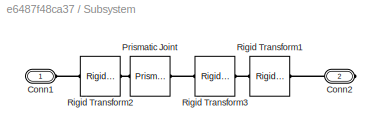
BLOCK [SubSystem] Subsystem
  Ports = [0, 0, 0, 0, 0, 1, 1]
  RequestExecContextInheritance = off
BLOCK [PMIOPort] Subsystem/Conn1
  Side = Left
BLOCK [PMIOPort] Subsystem/Conn2
  Port = 2
  Side = Right
BLOCK [Reference] Subsystem/Prismatic Joint  REF=sm_lib/Joints/Prismatic
Joint
  Ports = [0, 0, 0, 0, 0, 1, 1]
  SourceBlock = sm_lib/Joints/Prismatic\nJoint
  SourceProductBaseCode = MS
  SourceType = Prismatic\nJoint
BLOCK [Reference] Subsystem/Rigid Transform1  REF=sm_lib/Frames and
Transforms/Rigid
Transform
  Ports = [0, 0, 0, 0, 0, 1, 1]
  SourceBlock = sm_lib/Frames and\nTransforms/Rigid\nTransform
  SourceProductBaseCode = MS
  SourceType = Rigid\nTransform
BLOCK [Reference] Subsystem/Rigid Transform2  REF=sm_lib/Frames and
Transforms/Rigid
Transform
  Ports = [0, 0, 0, 0, 0, 1, 1]
  SourceBlock = sm_lib/Frames and\nTransforms/Rigid\nTransform
  SourceProductBaseCode = MS
  SourceType = Rigid\nTransform
BLOCK [Reference] Subsystem/Rigid Transform3  REF=sm_lib/Frames and
Transforms/Rigid
Transform
  Ports = [0, 0, 0, 0, 0, 1, 1]
  SourceBlock = sm_lib/Frames and\nTransforms/Rigid\nTransform
  SourceProductBaseCode = MS
  SourceType = Rigid\nTransform
BLOCK [Reference] World Frame  REF=sm_lib/Frames and
Transforms/World Frame
  Ports = [0, 0, 0, 0, 0, 0, 1]
  SourceBlock = sm_lib/Frames and\nTransforms/World Frame
  SourceProductBaseCode = MS
  SourceType = World Frame
BLOCK [ConnectionLabel] l
  Label = toHeader
  Ports = [0, 0, 0, 0, 0, 1]
BLOCK [ConnectionLabel] l1
  Label = toHeader
  Ports = [0, 0, 0, 0, 0, 1]
ANNOTATION Rotor aerodynamics: Calculation of advance velocity of rotor-head
ANNOTATION Rotor aerodynamics: Calculation of inflow angle and advance velocity magnitude
ANNOTATION Rotor aerodynamics: Calculation of rotor par
ANNOTATION Rotor aerodynamics: Calculation of rotor torque coefficient
LINE From:1 -> Rotor aerodynamics:1
LINE PS-Simulink Converter:1 -> Goto:1
LINE Rotor aerodynamics/Acos:1 -> Rotor aerodynamics/InflowAngle_Rad:1
LINE Rotor aerodynamics/Blade_radius:1 -> Rotor aerodynamics/Product:1
LINE Rotor aerodynamics/Constant1:1 -> Rotor aerodynamics/Product1:4
LINE Rotor aerodynamics/Constant:1 -> Rotor aerodynamics/CubicApproach:2
NET Rotor aerodynamics/CubicApproach:1 -> Rotor aerodynamics/Product1:3, Rotor aerodynamics/Scope1:1
NET Rotor aerodynamics/Divide1:1 -> Rotor aerodynamics/CubicApproach:1, Rotor aerodynamics/Scope3:1
NET Rotor aerodynamics/Divide2:1 -> Rotor aerodynamics/Rotor Par:1, Rotor aerodynamics/Scope:1
LINE Rotor aerodynamics/Divide:1 -> Rotor aerodynamics/Acos:1
LINE Rotor aerodynamics/Dot Product1:1 -> Rotor aerodynamics/Sqrt:1
LINE Rotor aerodynamics/Dot Product:1 -> Rotor aerodynamics/Divide:1
LINE Rotor aerodynamics/From1:1 -> Rotor aerodynamics/Product:2
LINE Rotor aerodynamics/From2:1 -> Rotor aerodynamics/Divide2:2
NET Rotor aerodynamics/From:1 -> Rotor aerodynamics/Pow:1, Rotor aerodynamics/Product1:2, Rotor aerodynamics/Scope2:1
NET Rotor aerodynamics/Matrix Multiply:1 -> Rotor aerodynamics/Dot Product1:1, Rotor aerodynamics/Dot Product1:2, Rotor aerodynamics/Dot Product:2
LINE Rotor aerodynamics/Mux:1 -> Rotor aerodynamics/Matrix Multiply:2
LINE Rotor aerodynamics/PS-Simulink Converter1:1 -> Rotor aerodynamics/Mux:1
LINE Rotor aerodynamics/PS-Simulink Converter2:1 -> Rotor aerodynamics/Mux:2
LINE Rotor aerodynamics/PS-Simulink Converter3:1 -> Rotor aerodynamics/Mux:3
LINE Rotor aerodynamics/PS-Simulink Converter:1 -> Rotor aerodynamics/Transpose:1
LINE Rotor aerodynamics/Pow:1 -> Rotor aerodynamics/Product1:1
LINE Rotor aerodynamics/Product1:1 -> Rotor aerodynamics/Divide2:1
LINE Rotor aerodynamics/Product:1 -> Rotor aerodynamics/Divide1:1
NET Rotor aerodynamics/Sqrt:1 -> Rotor aerodynamics/Divide1:2, Rotor aerodynamics/Divide:2, Rotor aerodynamics/Goto:1
LINE Rotor aerodynamics/Transpose:1 -> Rotor aerodynamics/Matrix Multiply:1
LINE Rotor aerodynamics/rotor_ang_vel:1 -> Rotor aerodynamics/Goto1:1
LINE Rotor aerodynamics/z unitary vector:1 -> Rotor aerodynamics/Dot Product:1
LINE Rotor aerodynamics:2 -> Simulink-PS Converter:1
PNET net1: 6-DOF Joint:LConn1 -- Mechanism Configuration:RConn1 -- Solver Configuration:RConn1 -- Spherical Joint:LConn1 -- Subsystem:LConn1 -- World Frame:RConn1 -- l1:LConn1
PNET net2: 6-DOF Joint:RConn1 -- Rigid Transform12:LConn1 -- Rigid Transform9:LConn1 -- Spherical Joint:RConn1 -- Subsystem:RConn1
PLINE Cam1_Frame:RConn1 -- Rigid Transform9:RConn1
PLINE External Force and Torque:LConn1 -- Simulink-PS Converter:RConn1
PNET net3: External Force and Torque:RConn1 -- Mastil:LConn1 -- Revolute Joint3:RConn1 -- Rigid Transform13:LConn1
PLINE Flap1:LConn1 -- Rigid Transform5:RConn1
PLINE Flap2:LConn1 -- Rigid Transform3:RConn1
PLINE Flap3:LConn1 -- Rigid Transform1:RConn1
PLINE Fuselaje/Barra Larga1:LConn1 -- Fuselaje/Rigid Transform24:RConn1
PLINE Fuselaje/Barra Larga2:LConn1 -- Fuselaje/Rigid Transform23:RConn1
PLINE Fuselaje/Barra Larga31:LConn1 -- Fuselaje/Rigid Transform22:RConn1
PLINE Fuselaje/Barra Larga32:LConn1 -- Fuselaje/Rigid Transform21:RConn1
PLINE Fuselaje/Barra Larga3:LConn1 -- Fuselaje/Rigid Transform26:RConn1
PLINE Fuselaje/Barra Larga4:LConn1 -- Fuselaje/Rigid Transform25:RConn1
PLINE Fuselaje/Battery:RConn1 -- Fuselaje/Rigid Transform30:RConn1
PNET net4: Fuselaje/Coaxial/Conn1:RConn1 -- Fuselaje/Coaxial/Motor Support1:LConn1 -- Fuselaje/Coaxial/MotorLow:LConn1
PLINE Fuselaje/Coaxial/Motor Support1:RConn1 -- Fuselaje/Coaxial/MotorHigh:LConn1
PNET net5: Fuselaje/Coaxial/MotorHigh:RConn1 -- Fuselaje/Coaxial/MotorTapa:LConn1 -- Fuselaje/Coaxial/ToPropeller1:RConn1 -- Fuselaje/Coaxial/ToPropeller2:RConn1
PLINE Fuselaje/Coaxial/MotorLow:RConn1 -- Fuselaje/Coaxial/MotorTapa1:LConn1
PLINE Fuselaje/Coaxial:LConn1 -- Fuselaje/Rigid Transform8:RConn1
PLINE Fuselaje/Coaxial:LConn2 -- Fuselaje/ToPropeller1:RConn1
PLINE Fuselaje/Coaxial:LConn3 -- Fuselaje/ToPropeller2:RConn1
PNET net6: Fuselaje/Conn1:RConn1 -- Fuselaje/Left_Skeleton:LConn1 -- Fuselaje/Right_Skeleton:LConn1 -- Fuselaje/Rigid Transform10:LConn1 -- Fuselaje/Rigid Transform15:LConn1 -- Fuselaje/Rigid Transform19:LConn1 -- Fuselaje/Rigid Transform1:LConn1 -- Fuselaje/Rigid Transform2:LConn1 -- Fuselaje/Rigid Transform30:LConn1 -- Fuselaje/Rigid Transform31:LConn1 -- Fuselaje/Rigid Transform32:LConn1 -- Fuselaje/Rigid Transform3:LConn1 -- Fuselaje/Rigid Transform4:LConn1 -- Fuselaje/Rigid Transform5:LConn1 -- Fuselaje/Rigid Transform7:LConn1 -- Fuselaje/Rigid Transform9:LConn1 -- Fuselaje/Rigid Transform:LConn1
PLINE Fuselaje/ESC1:RConn1 -- Fuselaje/Rigid Transform32:RConn1
PLINE Fuselaje/ESC:RConn1 -- Fuselaje/Rigid Transform31:RConn1
PLINE Fuselaje/Embebido:RConn1 -- Fuselaje/Rigid Transform19:RConn1
PLINE Fuselaje/Feet1:LConn1 -- Fuselaje/Rigid Transform27:RConn1
PLINE Fuselaje/Feet2:LConn1 -- Fuselaje/Rigid Transform28:RConn1
PLINE Fuselaje/Feet3:LConn1 -- Fuselaje/Rigid Transform29:RConn1
PLINE Fuselaje/Hub:LConn1 -- Fuselaje/Rigid Transform:RConn1
PLINE Fuselaje/Middle_Down:LConn1 -- Fuselaje/Rigid Transform5:RConn1
PLINE Fuselaje/Middle_Down:RConn1 -- Fuselaje/Rigid Transform6:LConn1
PLINE Fuselaje/Middle_Up:LConn1 -- Fuselaje/Rigid Transform4:RConn1
PLINE Fuselaje/Motor Support:LConn1 -- Fuselaje/Rigid Transform20:RConn1
PLINE Fuselaje/Rigid Transform10:RConn1 -- Fuselaje/Rigid Transform16:LConn1
PLINE Fuselaje/Rigid Transform11:LConn1 -- Fuselaje/Rigid Transform15:RConn1
PNET net7: Fuselaje/Rigid Transform11:RConn1 -- Fuselaje/Rigid Transform12:LConn1 -- Fuselaje/Wing3:LConn1
PNET net8: Fuselaje/Rigid Transform12:RConn1 -- Fuselaje/Rigid Transform21:LConn1 -- Fuselaje/Rigid Transform22:LConn1 -- Fuselaje/Rigid Transform29:LConn1
PNET net9: Fuselaje/Rigid Transform13:LConn1 -- Fuselaje/Rigid Transform16:RConn1 -- Fuselaje/Wing2:LConn1
PNET net10: Fuselaje/Rigid Transform13:RConn1 -- Fuselaje/Rigid Transform23:LConn1 -- Fuselaje/Rigid Transform24:LConn1 -- Fuselaje/Rigid Transform28:LConn1
PNET net11: Fuselaje/Rigid Transform14:LConn1 -- Fuselaje/Rigid Transform17:RConn1 -- Fuselaje/Wing1:LConn1
PNET net12: Fuselaje/Rigid Transform14:RConn1 -- Fuselaje/Rigid Transform25:LConn1 -- Fuselaje/Rigid Transform26:LConn1 -- Fuselaje/Rigid Transform27:LConn1
PLINE Fuselaje/Rigid Transform17:LConn1 -- Fuselaje/Rigid Transform9:RConn1
PLINE Fuselaje/Rigid Transform1:RConn1 -- Fuselaje/Skin_Leftt:LConn1
PNET net13: Fuselaje/Rigid Transform20:LConn1 -- Fuselaje/Rigid Transform7:RConn1 -- Fuselaje/Rigid Transform8:LConn1
PLINE Fuselaje/Rigid Transform2:RConn1 -- Fuselaje/Skin_Right:LConn1
PLINE Fuselaje/Rigid Transform3:RConn1 -- Fuselaje/Tail_Center:LConn1
PLINE Fuselaje/Rigid Transform6:RConn1 -- Fuselaje/ToMastil:RConn1
PLINE Fuselaje/Servo1:LConn1 -- Fuselaje/Wing2:LConn2
PLINE Fuselaje/Servo2:LConn1 -- Fuselaje/Wing1:LConn2
PLINE Fuselaje/Servo:LConn1 -- Fuselaje/Wing3:LConn2
PLINE Fuselaje/ToFlat1:RConn1 -- Fuselaje/Wing1:RConn1
PLINE Fuselaje/ToFlat2:RConn1 -- Fuselaje/Wing2:RConn1
PLINE Fuselaje/ToFlat3:RConn1 -- Fuselaje/Wing3:RConn1
PLINE Fuselaje:LConn1 -- Rigid Transform8:RConn1
PLINE Fuselaje:LConn2 -- Rigid Transform:LConn1
PLINE Fuselaje:LConn3 -- Rigid Transform2:LConn1
PLINE Fuselaje:LConn4 -- Rigid Transform4:LConn1
PLINE Fuselaje:LConn5 -- Revolute Joint3:LConn1
PLINE Fuselaje:LConn6 -- Rigid Transform6:LConn1
PLINE Fuselaje:LConn7 -- Rigid Transform10:LConn1
PLINE Header:LConn1 -- Pala1:LConn1
PNET net14: Header:LConn2 -- Rigid Transform13:RConn1 -- Rotor aerodynamics:RConn1
PLINE Header:RConn1 -- Pala2:LConn1
PLINE PS-Simulink Converter:LConn1 -- Revolute Joint3:RConn2
PLINE PropellerN:LConn1 -- Rigid Transform7:RConn1
PLINE PropellerP:LConn1 -- Rigid Transform11:RConn1
PLINE Revolute Joint1:LConn1 -- Rigid Transform2:RConn1
PLINE Revolute Joint1:RConn1 -- Rigid Transform3:LConn1
PLINE Revolute Joint2:LConn1 -- Rigid Transform4:RConn1
PLINE Revolute Joint2:RConn1 -- Rigid Transform5:LConn1
PLINE Revolute Joint4:LConn1 -- Rigid Transform6:RConn1
PLINE Revolute Joint4:RConn1 -- Rigid Transform7:LConn1
PLINE Revolute Joint5:LConn1 -- Rigid Transform:RConn1
PLINE Revolute Joint5:RConn1 -- Rigid Transform1:LConn1
PLINE Revolute Joint6:LConn1 -- Rigid Transform10:RConn1
PLINE Revolute Joint6:RConn1 -- Rigid Transform11:LConn1
PLINE Rigid Transform12:RConn1 -- Rigid Transform8:LConn1
PLINE Rotor aerodynamics/Calculator:LConn1 -- Rotor aerodynamics/marco_inercial:RConn1
PLINE Rotor aerodynamics/Calculator:RConn1 -- Rotor aerodynamics/marco_rotorhead:RConn1
PLINE Rotor aerodynamics/Calculator:RConn2 -- Rotor aerodynamics/PS-Simulink Converter:LConn1
PLINE Rotor aerodynamics/Calculator:RConn3 -- Rotor aerodynamics/PS-Simulink Converter1:LConn1
PLINE Rotor aerodynamics/Calculator:RConn4 -- Rotor aerodynamics/PS-Simulink Converter2:LConn1
PLINE Rotor aerodynamics/Calculator:RConn5 -- Rotor aerodynamics/PS-Simulink Converter3:LConn1
PLINE Rotor aerodynamics:LConn1 -- l:LConn1
PLINE Subsystem/Conn1:RConn1 -- Subsystem/Rigid Transform2:LConn1
PLINE Subsystem/Conn2:RConn1 -- Subsystem/Rigid Transform1:RConn1
PLINE Subsystem/Prismatic Joint:LConn1 -- Subsystem/Rigid Transform2:RConn1
PLINE Subsystem/Prismatic Joint:RConn1 -- Subsystem/Rigid Transform3:LConn1
PLINE Subsystem/Rigid Transform1:LConn1 -- Subsystem/Rigid Transform3:RConn1
note: NET lines group one-source signal fan-out (src -> all destinations, sorted); 1:1 wires keep LINE; PNET lines group multi-terminal physical nets as a canonical sorted terminal list (undirected conserving connections); 2-terminal nets keep the pairwise PLINE form
CHART Rotor aerodynamics/CubicApproach states=1 transitions=1
  STATE_LABEL 'eML_blk_kernel()'
  STATE_LABEL 'SCRIPT:\nfunction par_coefficient = fcn(TSR, par_coefficient_table)\n\nfoll_greater = 0; \n\npar_coefficient_table(:,2) = 6 .* par_coefficient_table(:,2) ; % Check why data is wrong\n\nfor i = 1:1:(size(par_coefficient_table, 1) - 1)\n    if (TSR <= par_coefficient_table(i, 1)) && (TSR+1 > par_coefficient_table(i, 1))\n        foll_greater = i; \n        break\n    end\nend\n\n\nif foll_greater > 3\n    x = [foll...<+725ch>'
CHART  states=0 transitions=0
